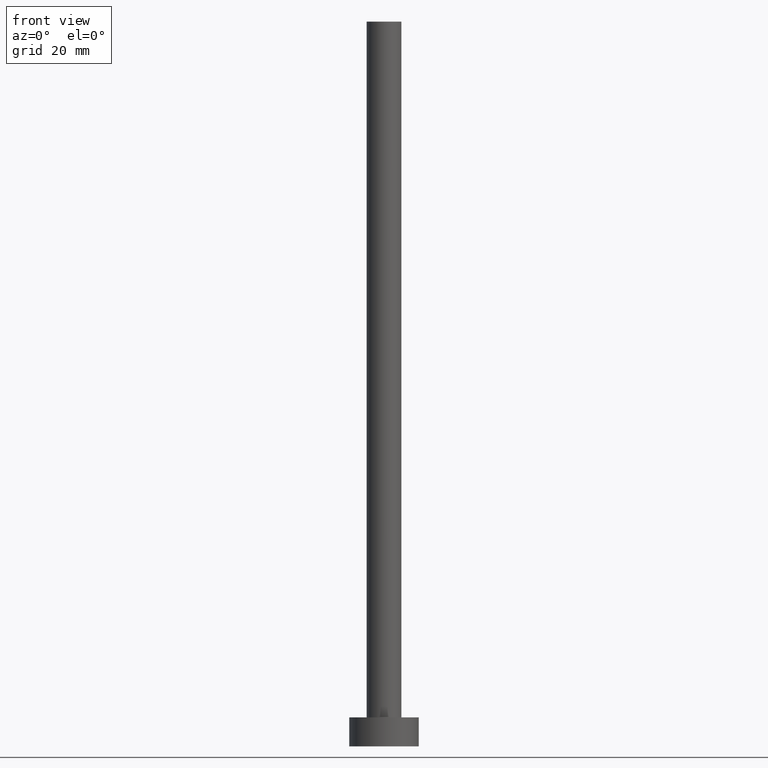
[diagram: clean part render]
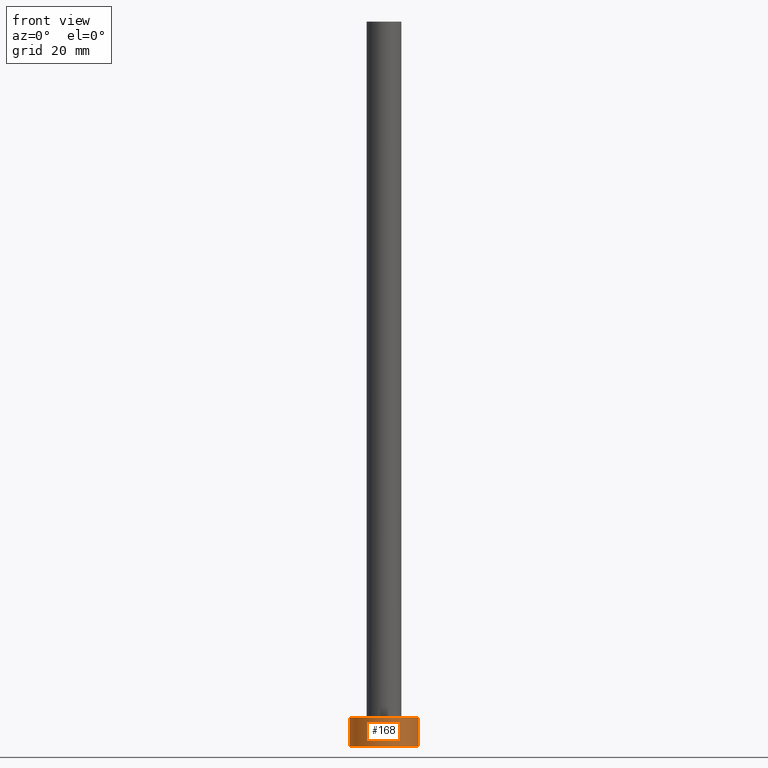
[diagram: same view with one face highlighted and labeled with its STEP entity id]
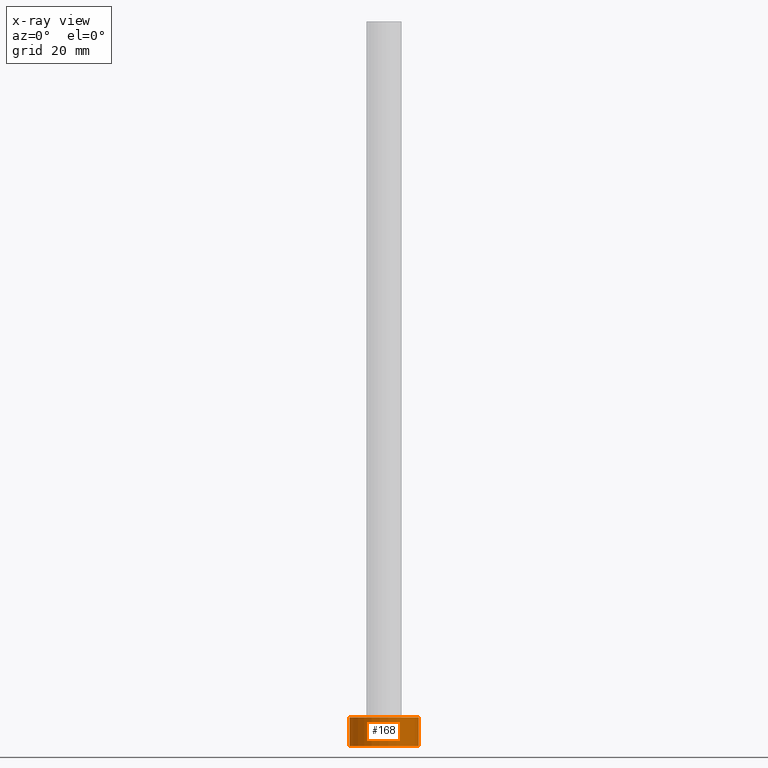
[diagram: x-ray of the same camera — body ghosted, the highlighted face saturated]
A machine part, front view. The second image highlights one B-rep face of the part: STEP entity #168.
The next image is the same camera in x-ray: the body ghosted, the highlighted face saturated — about 0% of this face is hidden behind the body in this view.
In plain terms, the highlighted cylindrical surface (edge-blend (fillet) strip) has radius 6 mm, axis along (-0, -0, -1).
Its self-contained STEP definition (entity closure, byte-faithful):
#4 = DIRECTION ( 'NONE',  ( 0.000000000000000000, 0.000000000000000000, 1.000000000000000000 ) ) ;
#10 = CARTESIAN_POINT ( 'NONE',  ( 0.000000000000000000, 0.000000000000000000, 5.000000000000000000 ) ) ;
#19 = EDGE_LOOP ( 'NONE', ( #98, #159, #242, #239 ) ) ;
#24 = VERTEX_POINT ( 'NONE', #86 ) ;
#34 = EDGE_CURVE ( 'NONE', #218, #121, #43, .T. ) ;
#35 = CARTESIAN_POINT ( 'NONE',  ( 6.000000000000000888, 7.347880794884120722E-16, 5.000000000000000000 ) ) ;
#43 = LINE ( 'NONE', #82, #232 ) ;
#45 = DIRECTION ( 'NONE',  ( 1.000000000000000000, 0.000000000000000000, 0.000000000000000000 ) ) ;
#52 = CARTESIAN_POINT ( 'NONE',  ( 6.000000000000000888, 7.347880794884120722E-16, 0.000000000000000000 ) ) ;
#61 = CARTESIAN_POINT ( 'NONE',  ( 0.000000000000000000, 0.000000000000000000, 5.000000000000000000 ) ) ;
#69 = CARTESIAN_POINT ( 'NONE',  ( -6.000000000000000888, 0.000000000000000000, 5.000000000000000000 ) ) ;
#74 = EDGE_CURVE ( 'NONE', #121, #244, #251, .T. ) ;
#80 = DIRECTION ( 'NONE',  ( 1.000000000000000000, 0.000000000000000000, 0.000000000000000000 ) ) ;
#82 = CARTESIAN_POINT ( 'NONE',  ( -6.000000000000000888, 0.000000000000000000, 5.000000000000000000 ) ) ;
#86 = CARTESIAN_POINT ( 'NONE',  ( 6.000000000000000888, 7.347880794884120722E-16, 5.000000000000000000 ) ) ;
#90 = EDGE_CURVE ( 'NONE', #218, #24, #184, .T. ) ;
#98 = ORIENTED_EDGE ( 'NONE', *, *, #160, .F. ) ;
#102 = AXIS2_PLACEMENT_3D ( 'NONE', #223, #124, #45 ) ;
#107 = CARTESIAN_POINT ( 'NONE',  ( -6.000000000000000888, 0.000000000000000000, 0.000000000000000000 ) ) ;
#121 = VERTEX_POINT ( 'NONE', #107 ) ;
#124 = DIRECTION ( 'NONE',  ( 0.000000000000000000, 0.000000000000000000, 1.000000000000000000 ) ) ;
#152 = LINE ( 'NONE', #35, #224 ) ;
#159 = ORIENTED_EDGE ( 'NONE', *, *, #90, .F. ) ;
#160 = EDGE_CURVE ( 'NONE', #24, #244, #152, .T. ) ;
#168 = ADVANCED_FACE ( 'NONE', ( #233 ), #173, .T. ) ;
#173 = CYLINDRICAL_SURFACE ( 'NONE', #205, 6.000000000000000888 ) ;
#183 = DIRECTION ( 'NONE',  ( -0.000000000000000000, -0.000000000000000000, -1.000000000000000000 ) ) ;
#184 = CIRCLE ( 'NONE', #210, 6.000000000000000888 ) ;
#205 = AXIS2_PLACEMENT_3D ( 'NONE', #10, #230, #208 ) ;
#208 = DIRECTION ( 'NONE',  ( -1.000000000000000000, 0.000000000000000000, 0.000000000000000000 ) ) ;
#210 = AXIS2_PLACEMENT_3D ( 'NONE', #61, #4, #80 ) ;
#218 = VERTEX_POINT ( 'NONE', #69 ) ;
#223 = CARTESIAN_POINT ( 'NONE',  ( 0.000000000000000000, 0.000000000000000000, 0.000000000000000000 ) ) ;
#224 = VECTOR ( 'NONE', #249, 1000.000000000000000 ) ;
#230 = DIRECTION ( 'NONE',  ( -0.000000000000000000, -0.000000000000000000, -1.000000000000000000 ) ) ;
#232 = VECTOR ( 'NONE', #183, 1000.000000000000000 ) ;
#233 = FACE_OUTER_BOUND ( 'NONE', #19, .T. ) ;
#239 = ORIENTED_EDGE ( 'NONE', *, *, #74, .T. ) ;
#242 = ORIENTED_EDGE ( 'NONE', *, *, #34, .T. ) ;
#244 = VERTEX_POINT ( 'NONE', #52 ) ;
#249 = DIRECTION ( 'NONE',  ( -0.000000000000000000, -0.000000000000000000, -1.000000000000000000 ) ) ;
#251 = CIRCLE ( 'NONE', #102, 6.000000000000000888 ) ;